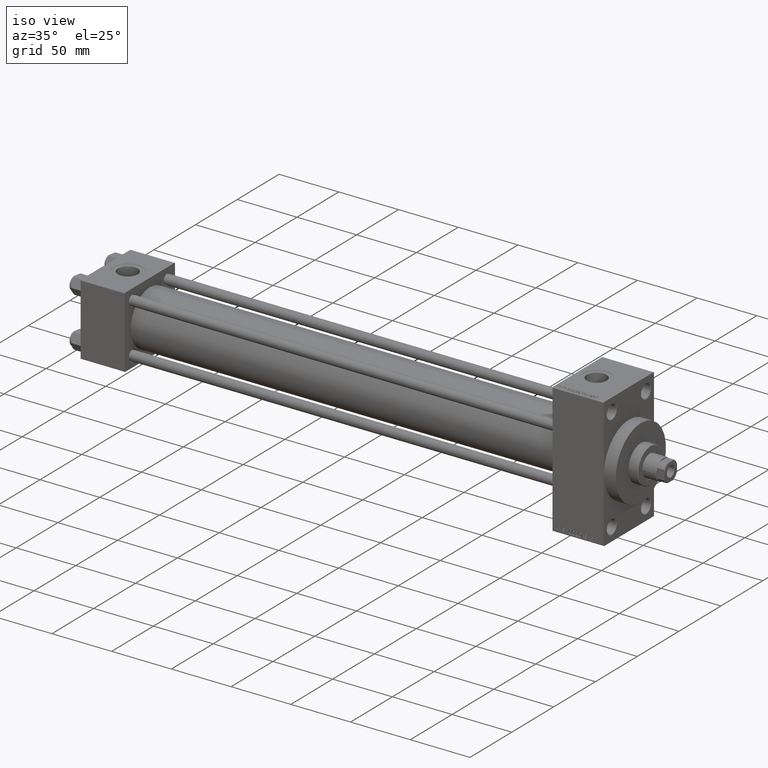
[diagram: clean part render]
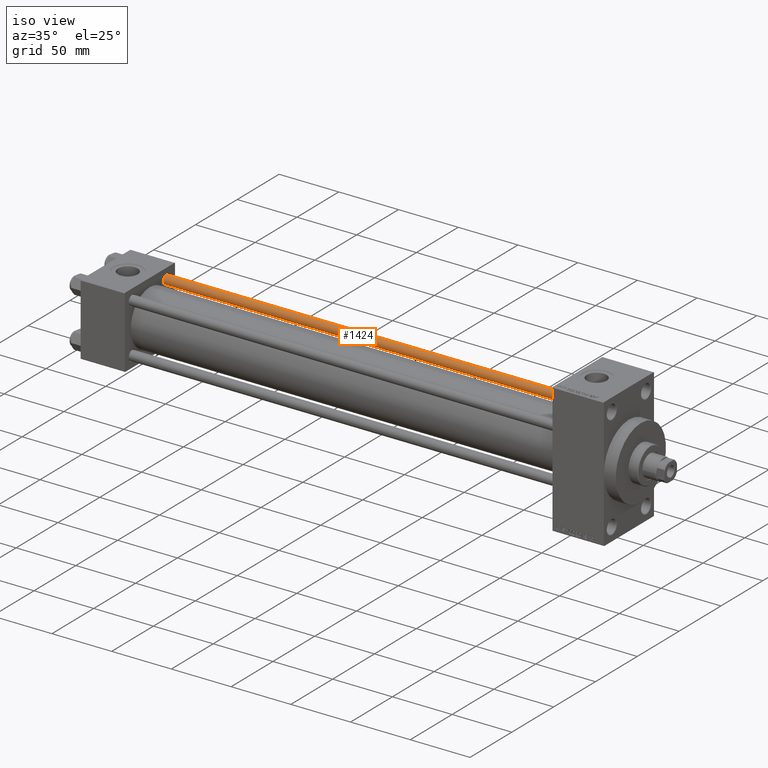
[diagram: same view with one face highlighted and labeled with its STEP entity id]
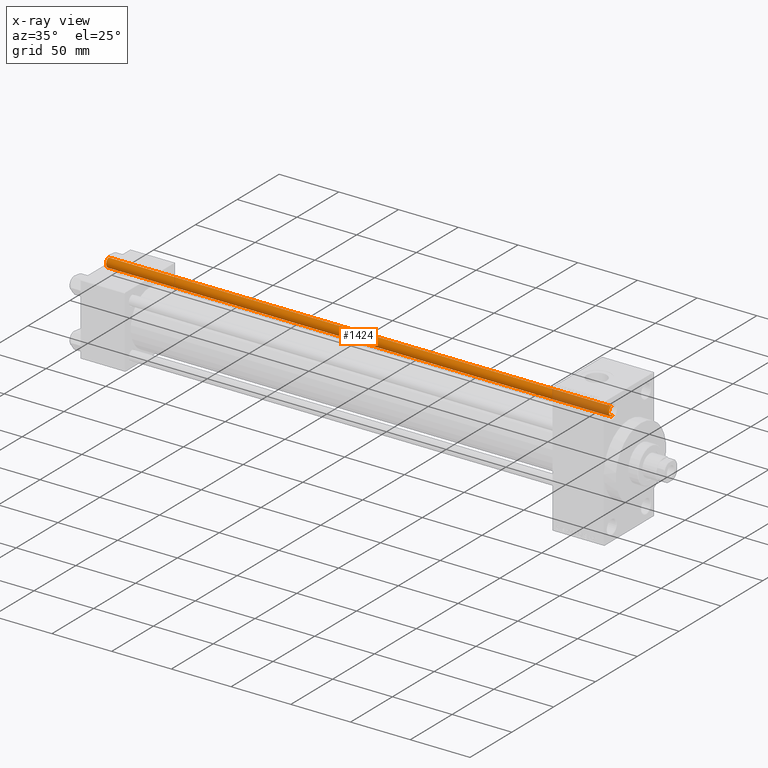
[diagram: x-ray of the same camera — body ghosted, the highlighted face saturated]
A machine part, iso view. The second image highlights one B-rep face of the part: STEP entity #1424.
The next image is the same camera in x-ray: the body ghosted, the highlighted face saturated — about 11% of this face is hidden behind the body in this view.
In plain terms, the highlighted cylindrical surface (edge-blend (fillet) strip) has radius 4 mm, axis along (-1, -0, 0).
Its self-contained STEP definition (entity closure, byte-faithful):
#1424 = ADVANCED_FACE ( 'NONE', ( #5759 ), #9012, .T. ) ;
#1944 = CARTESIAN_POINT ( 'NONE',  ( 0.000000000000000000, 0.000000000000000000, 0.5000000000001114664 ) ) ;
#3208 = VERTEX_POINT ( 'NONE', #28461 ) ;
#4964 = DIRECTION ( 'NONE',  ( 1.000000000000000000, 0.000000000000000000, 0.000000000000000000 ) ) ;
#5559 = DIRECTION ( 'NONE',  ( -0.000000000000000000, -0.000000000000000000, -1.000000000000000000 ) ) ;
#5759 = FACE_OUTER_BOUND ( 'NONE', #19288, .T. ) ;
#6521 = ORIENTED_EDGE ( 'NONE', *, *, #12947, .F. ) ;
#7042 = DIRECTION ( 'NONE',  ( 1.000000000000000000, 0.000000000000000000, 0.000000000000000000 ) ) ;
#7865 = VERTEX_POINT ( 'NONE', #27104 ) ;
#8326 = AXIS2_PLACEMENT_3D ( 'NONE', #27476, #16494, #23733 ) ;
#9012 = CYLINDRICAL_SURFACE ( 'NONE', #8326, 4.000000000000000000 ) ;
#10904 = CIRCLE ( 'NONE', #45977, 4.000000000000000000 ) ;
#12947 = EDGE_CURVE ( 'NONE', #33381, #3208, #39158, .T. ) ;
#13599 = CARTESIAN_POINT ( 'NONE',  ( 4.000000000000000000, 4.898587196589412829E-16, 421.4999999999999432 ) ) ;
#13693 = ORIENTED_EDGE ( 'NONE', *, *, #39582, .T. ) ;
#14634 = EDGE_CURVE ( 'NONE', #16452, #7865, #24494, .T. ) ;
#16452 = VERTEX_POINT ( 'NONE', #33286 ) ;
#16494 = DIRECTION ( 'NONE',  ( -0.000000000000000000, -0.000000000000000000, -1.000000000000000000 ) ) ;
#16943 = EDGE_CURVE ( 'NONE', #33381, #16452, #36552, .T. ) ;
#18012 = CARTESIAN_POINT ( 'NONE',  ( 0.000000000000000000, 0.000000000000000000, 421.4999999999999432 ) ) ;
#19288 = EDGE_LOOP ( 'NONE', ( #6521, #49128, #43618, #13693 ) ) ;
#19703 = DIRECTION ( 'NONE',  ( -0.000000000000000000, -0.000000000000000000, -1.000000000000000000 ) ) ;
#20598 = AXIS2_PLACEMENT_3D ( 'NONE', #18012, #29494, #7042 ) ;
#23733 = DIRECTION ( 'NONE',  ( -1.000000000000000000, 0.000000000000000000, 0.000000000000000000 ) ) ;
#24494 = LINE ( 'NONE', #39710, #42012 ) ;
#24622 = DIRECTION ( 'NONE',  ( -0.000000000000000000, -0.000000000000000000, 1.000000000000000000 ) ) ;
#27104 = CARTESIAN_POINT ( 'NONE',  ( -4.000000000000000000, 0.000000000000000000, 0.5000000000001114664 ) ) ;
#27196 = CARTESIAN_POINT ( 'NONE',  ( 4.000000000000000000, 4.898587196589412829E-16, 422.0000000000000000 ) ) ;
#27476 = CARTESIAN_POINT ( 'NONE',  ( 0.000000000000000000, 0.000000000000000000, 422.0000000000000000 ) ) ;
#28461 = CARTESIAN_POINT ( 'NONE',  ( 4.000000000000000000, 4.898587196589412829E-16, 0.5000000000001114664 ) ) ;
#29494 = DIRECTION ( 'NONE',  ( 0.000000000000000000, 0.000000000000000000, -1.000000000000000000 ) ) ;
#33286 = CARTESIAN_POINT ( 'NONE',  ( -4.000000000000000000, 0.000000000000000000, 421.4999999999999432 ) ) ;
#33381 = VERTEX_POINT ( 'NONE', #13599 ) ;
#36552 = CIRCLE ( 'NONE', #20598, 4.000000000000000000 ) ;
#39158 = LINE ( 'NONE', #27196, #42802 ) ;
#39582 = EDGE_CURVE ( 'NONE', #7865, #3208, #10904, .T. ) ;
#39710 = CARTESIAN_POINT ( 'NONE',  ( -4.000000000000000000, 0.000000000000000000, 422.0000000000000000 ) ) ;
#42012 = VECTOR ( 'NONE', #5559, 1000.000000000000000 ) ;
#42802 = VECTOR ( 'NONE', #19703, 1000.000000000000000 ) ;
#43618 = ORIENTED_EDGE ( 'NONE', *, *, #14634, .T. ) ;
#45977 = AXIS2_PLACEMENT_3D ( 'NONE', #1944, #24622, #4964 ) ;
#49128 = ORIENTED_EDGE ( 'NONE', *, *, #16943, .T. ) ;